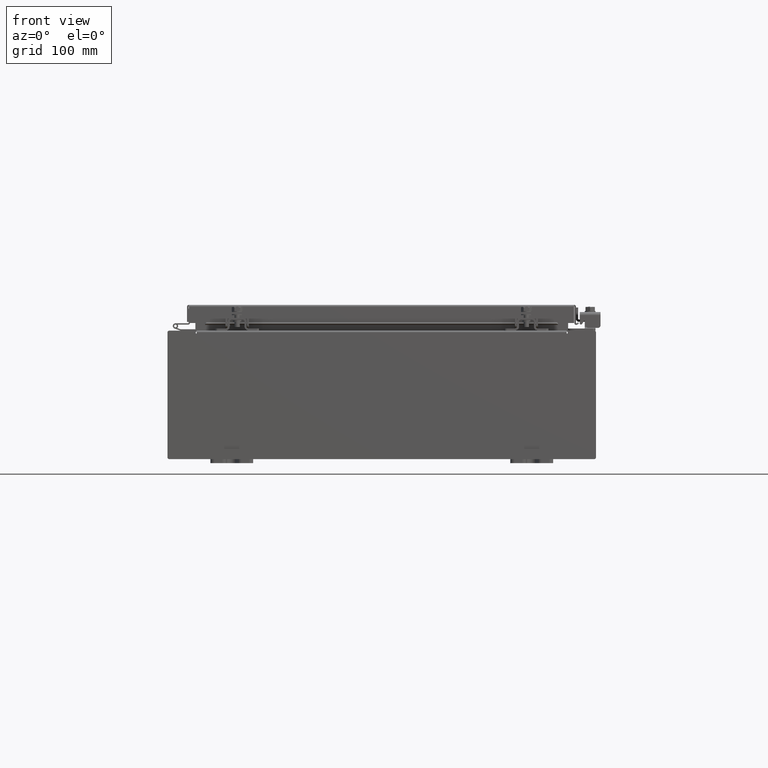
[diagram: clean part render]
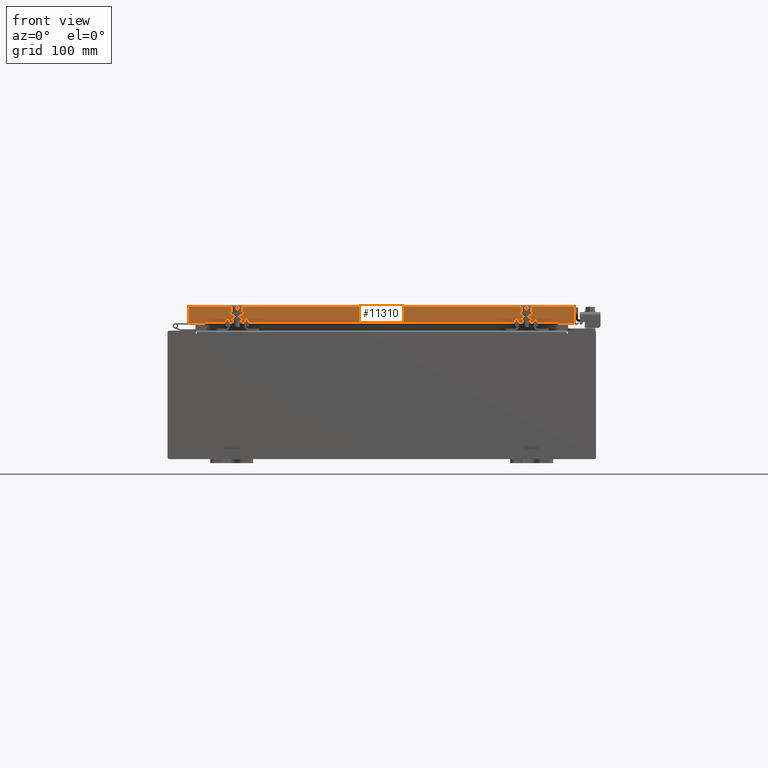
[diagram: same view with one face highlighted and labeled with its STEP entity id]
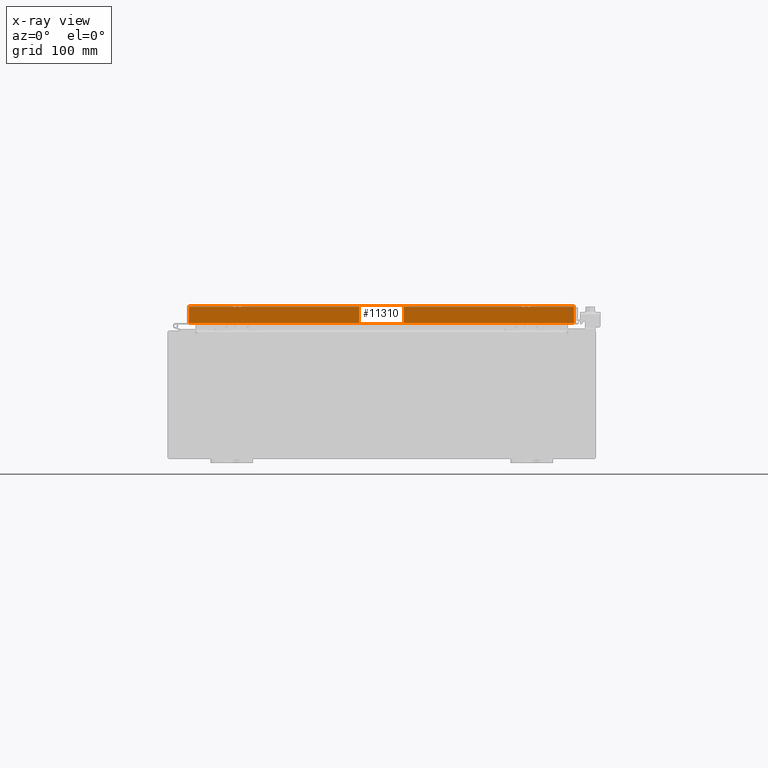
[diagram: x-ray of the same camera — body ghosted, the highlighted face saturated]
A machine part, front view. The second image highlights one B-rep face of the part: STEP entity #11310.
The next image is the same camera in x-ray: the body ghosted, the highlighted face saturated — about 0% of this face is hidden behind the body in this view.
In plain terms, the highlighted planar face has unit normal (-0, 1, -0).
Its self-contained STEP definition (entity closure, byte-faithful):
#76 = EDGE_CURVE ( 'NONE', #13236, #19767, #20539, .T. ) ;
#522 = DIRECTION ( 'NONE',  ( 0.0000000000000000000, -2.818880942772360100E-015, -1.000000000000000000 ) ) ;
#686 = CARTESIAN_POINT ( 'NONE',  ( -8.989157864376267100, -11.09400000000000700, -0.8499999999999975400 ) ) ;
#1103 = ORIENTED_EDGE ( 'NONE', *, *, #12869, .F. ) ;
#1446 = CARTESIAN_POINT ( 'NONE',  ( -8.989157864376267100, -11.09400000000000100, -0.08769999999999789100 ) ) ;
#1462 = ORIENTED_EDGE ( 'NONE', *, *, #5364, .F. ) ;
#1741 = ORIENTED_EDGE ( 'NONE', *, *, #13545, .F. ) ;
#1805 = AXIS2_PLACEMENT_3D ( 'NONE', #6935, #4518, #21978 ) ;
#2158 = CARTESIAN_POINT ( 'NONE',  ( 8.989157864376267100, -11.09400000000000300, -0.8499999999999996400 ) ) ;
#2629 = CARTESIAN_POINT ( 'NONE',  ( 9.077999999999999400, -11.09400000000000100, -0.08770000000000007000 ) ) ;
#2856 = CARTESIAN_POINT ( 'NONE',  ( 9.077999999999999400, -11.09400000000000300, -0.8499999999999996400 ) ) ;
#3232 = VERTEX_POINT ( 'NONE', #22558 ) ;
#4518 = DIRECTION ( 'NONE',  ( -1.203722403024574200E-016, 1.000000000000000000, -2.818880942772360100E-015 ) ) ;
#5364 = EDGE_CURVE ( 'NONE', #11938, #13764, #6981, .T. ) ;
#6935 = CARTESIAN_POINT ( 'NONE',  ( 1.335409633915462800E-015, -11.09400000000000100, 3.153347883512815000E-014 ) ) ;
#6981 = LINE ( 'NONE', #19579, #12828 ) ;
#7944 = CARTESIAN_POINT ( 'NONE',  ( 8.989157864376267100, -11.09400000000000100, -0.08769999999999897300 ) ) ;
#8034 = VECTOR ( 'NONE', #28112, 39.37007874015748100 ) ;
#8096 = CARTESIAN_POINT ( 'NONE',  ( -8.989157864376267100, -11.09400000000000100, 3.153347883512815000E-014 ) ) ;
#9692 = ORIENTED_EDGE ( 'NONE', *, *, #19138, .F. ) ;
#11144 = CARTESIAN_POINT ( 'NONE',  ( 8.239157864376267100, -11.09399999999999900, -0.8500000000000017500 ) ) ;
#11310 = ADVANCED_FACE ( 'NONE', ( #15389 ), #16956, .F. ) ;
#11938 = VERTEX_POINT ( 'NONE', #2158 ) ;
#12698 = DIRECTION ( 'NONE',  ( 1.000000000000000000, 1.203722403024570700E-016, -1.203722403024570700E-016 ) ) ;
#12828 = VECTOR ( 'NONE', #24588, 39.37007874015748100 ) ;
#12869 = EDGE_CURVE ( 'NONE', #27526, #11938, #31863, .T. ) ;
#13236 = VERTEX_POINT ( 'NONE', #1446 ) ;
#13545 = EDGE_CURVE ( 'NONE', #13236, #27526, #31413, .T. ) ;
#13764 = VERTEX_POINT ( 'NONE', #11144 ) ;
#13901 = ORIENTED_EDGE ( 'NONE', *, *, #25179, .F. ) ;
#15389 = FACE_OUTER_BOUND ( 'NONE', #25142, .T. ) ;
#15408 = DIRECTION ( 'NONE',  ( -1.000000000000000000, -1.203722403024570700E-016, 1.203722403024570700E-016 ) ) ;
#16255 = LINE ( 'NONE', #25819, #8034 ) ;
#16409 = VECTOR ( 'NONE', #15408, 39.37007874015748100 ) ;
#16956 = PLANE ( 'NONE',  #1805 ) ;
#19138 = EDGE_CURVE ( 'NONE', #13764, #3232, #16255, .T. ) ;
#19579 = CARTESIAN_POINT ( 'NONE',  ( 9.077999999999999400, -11.09400000000000300, -0.8499999999999996400 ) ) ;
#19767 = VERTEX_POINT ( 'NONE', #686 ) ;
#20069 = CARTESIAN_POINT ( 'NONE',  ( 8.989157864376267100, -11.09400000000000100, -0.07469999999999978000 ) ) ;
#20539 = LINE ( 'NONE', #8096, #32266 ) ;
#21978 = DIRECTION ( 'NONE',  ( 0.0000000000000000000, 2.818880942772360100E-015, 1.000000000000000000 ) ) ;
#22558 = CARTESIAN_POINT ( 'NONE',  ( -8.239157864376267100, -11.09399999999999900, -0.8500000000000017500 ) ) ;
#22581 = DIRECTION ( 'NONE',  ( -0.0000000000000000000, -2.818880942772360100E-015, -1.000000000000000000 ) ) ;
#24588 = DIRECTION ( 'NONE',  ( -1.000000000000000000, -1.203722403024570700E-016, 1.203722403024570700E-016 ) ) ;
#24787 = VECTOR ( 'NONE', #12698, 39.37007874015748100 ) ;
#25142 = EDGE_LOOP ( 'NONE', ( #1741, #29896, #13901, #9692, #1462, #1103 ) ) ;
#25179 = EDGE_CURVE ( 'NONE', #3232, #19767, #30479, .T. ) ;
#25819 = CARTESIAN_POINT ( 'NONE',  ( 8.239157864376267100, -11.09399999999999900, -0.8500000000000017500 ) ) ;
#27526 = VERTEX_POINT ( 'NONE', #7944 ) ;
#28112 = DIRECTION ( 'NONE',  ( -1.000000000000000000, 0.0000000000000000000, 0.0000000000000000000 ) ) ;
#29896 = ORIENTED_EDGE ( 'NONE', *, *, #76, .T. ) ;
#30479 = LINE ( 'NONE', #2856, #16409 ) ;
#31067 = VECTOR ( 'NONE', #22581, 39.37007874015748100 ) ;
#31413 = LINE ( 'NONE', #2629, #24787 ) ;
#31863 = LINE ( 'NONE', #20069, #31067 ) ;
#32266 = VECTOR ( 'NONE', #522, 39.37007874015748100 ) ;